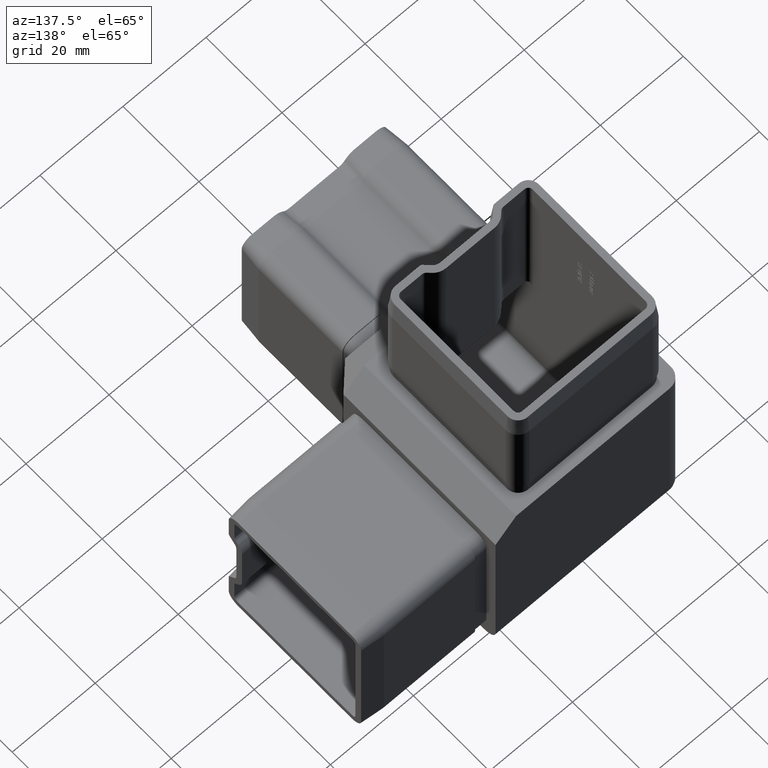
[diagram: clean part render]
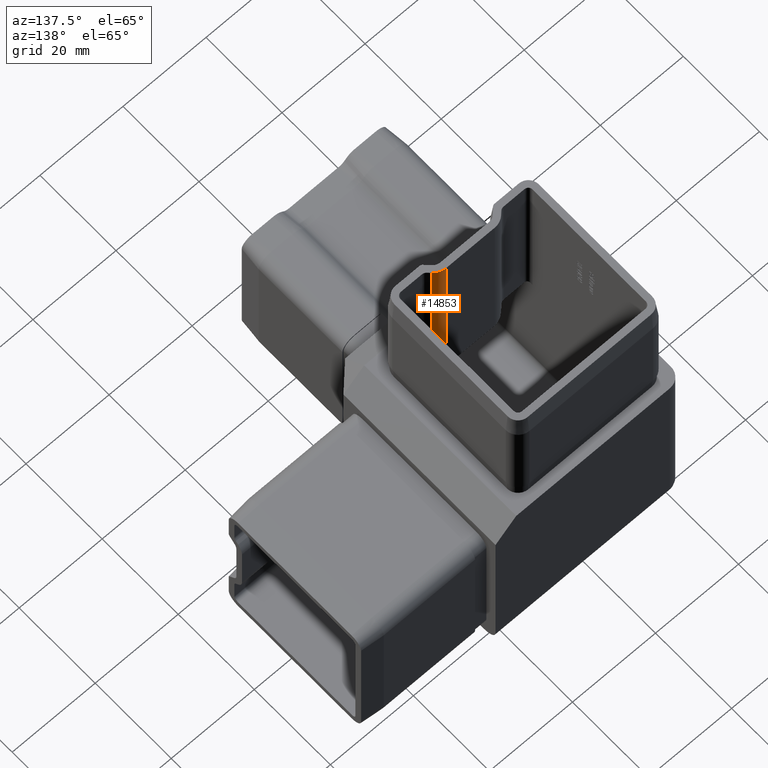
[diagram: same view with one face highlighted and labeled with its STEP entity id]
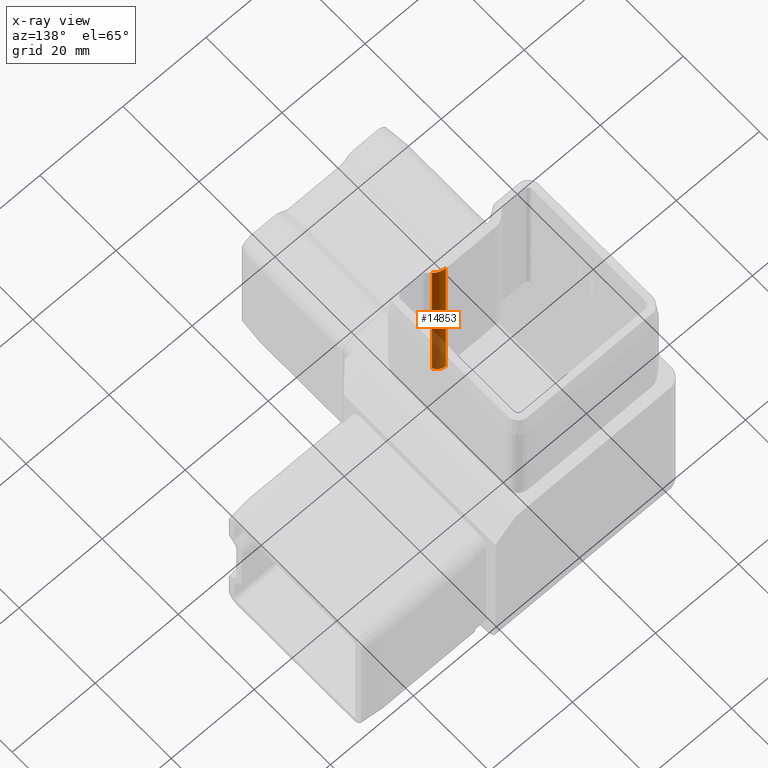
[diagram: x-ray of the same camera — body ghosted, the highlighted face saturated]
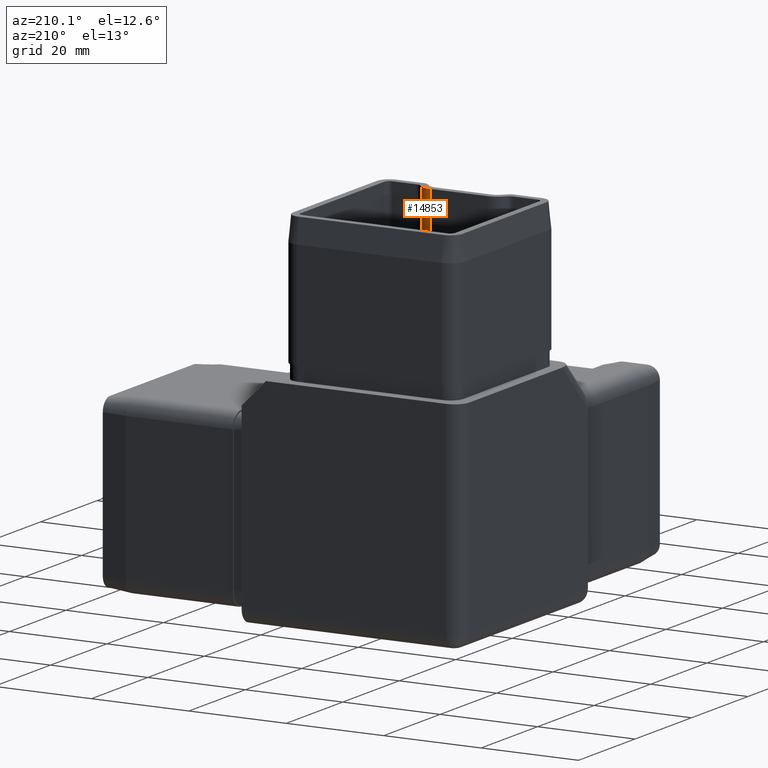
[diagram: same view with one face highlighted and labeled with its STEP entity id]
A machine part, auxiliary view. The second image highlights one B-rep face of the part: STEP entity #14853.
The next image is the same camera in x-ray: the body ghosted, the highlighted face saturated — about 32% of this face is hidden behind the body in this view.
A second angle (auxiliary view) of the same face is appended — the face is thin or edge-on in the first view.
In plain terms, the highlighted cylindrical surface (edge-blend (fillet) strip) has radius 3.5 mm, axis along (-0, -0, -1).
Its self-contained STEP definition (entity closure, byte-faithful):
#1779 = VERTEX_POINT ( 'NONE', #6668 ) ;
#2434 = VECTOR ( 'NONE', #5257, 1000.000000000000000 ) ;
#2592 = DIRECTION ( 'NONE',  ( 1.000000000000000000, 0.0000000000000000000, 0.0000000000000000000 ) ) ;
#3000 = CYLINDRICAL_SURFACE ( 'NONE', #14051, 3.500000000000000400 ) ;
#3264 = EDGE_LOOP ( 'NONE', ( #12766, #4208, #13598, #6419 ) ) ;
#4181 = EDGE_CURVE ( 'NONE', #11498, #16395, #10893, .T. ) ;
#4208 = ORIENTED_EDGE ( 'NONE', *, *, #4181, .F. ) ;
#5214 = DIRECTION ( 'NONE',  ( -0.0000000000000000000, -0.0000000000000000000, -1.000000000000000000 ) ) ;
#5257 = DIRECTION ( 'NONE',  ( -0.0000000000000000000, -0.0000000000000000000, -1.000000000000000000 ) ) ;
#5471 = CARTESIAN_POINT ( 'NONE',  ( 3.378679656440366100, -11.40000000000000400, 52.50000000000000000 ) ) ;
#5583 = CIRCLE ( 'NONE', #16448, 3.500000000000000400 ) ;
#6419 = ORIENTED_EDGE ( 'NONE', *, *, #11043, .T. ) ;
#6507 = DIRECTION ( 'NONE',  ( -0.0000000000000000000, -0.0000000000000000000, -1.000000000000000000 ) ) ;
#6668 = CARTESIAN_POINT ( 'NONE',  ( 5.853553390593282800, -12.42512626584708700, 52.50000000000000000 ) ) ;
#6698 = VERTEX_POINT ( 'NONE', #5471 ) ;
#7474 = CARTESIAN_POINT ( 'NONE',  ( 5.188403598331389000, -11.75997647358519200, 11.75997647358519600 ) ) ;
#8065 = CARTESIAN_POINT ( 'NONE',  ( 3.378679656440366500, -14.90000000000000400, 52.50000000000000000 ) ) ;
#8787 = CARTESIAN_POINT ( 'NONE',  ( 5.853553390593284600, -12.42512626584708700, 12.42512626584708900 ) ) ;
#9123 = CARTESIAN_POINT ( 'NONE',  ( 3.378679656440366500, -11.40000000000000400, 11.40000000000000700 ) ) ;
#10123 = CARTESIAN_POINT ( 'NONE',  ( 3.378679656440366500, -11.40000000000000400, 11.40000000000000700 ) ) ;
#10361 = CARTESIAN_POINT ( 'NONE',  ( 5.853553390593284600, -12.42512626584708700, 12.42512626584708900 ) ) ;
#10566 = CARTESIAN_POINT ( 'NONE',  ( 5.853553390593282800, -12.42512626584708700, 52.50000000000000000 ) ) ;
#10893 =( BOUNDED_CURVE ( )  B_SPLINE_CURVE ( 3, ( #10123, #15417, #7474, #8787 ),
 .UNSPECIFIED., .F., .T. ) 
 B_SPLINE_CURVE_WITH_KNOTS ( ( 4, 4 ),
 ( 3.141592653589793100, 3.926990816987241800 ),
 .UNSPECIFIED. ) 
 CURVE ( )  GEOMETRIC_REPRESENTATION_ITEM ( )  RATIONAL_B_SPLINE_CURVE ( ( 1.000000000000000000, 0.9492530216741910100, 0.9492530216741910100, 1.000000000000000000 ) ) 
 REPRESENTATION_ITEM ( '' )  );
#11043 = EDGE_CURVE ( 'NONE', #6698, #1779, #5583, .T. ) ;
#11498 = VERTEX_POINT ( 'NONE', #9123 ) ;
#11522 = LINE ( 'NONE', #14488, #14636 ) ;
#11535 = EDGE_CURVE ( 'NONE', #1779, #16395, #17182, .T. ) ;
#11821 = CARTESIAN_POINT ( 'NONE',  ( 3.378679656440366500, -14.90000000000000400, 52.50000000000000000 ) ) ;
#12766 = ORIENTED_EDGE ( 'NONE', *, *, #11535, .T. ) ;
#12783 = FACE_OUTER_BOUND ( 'NONE', #3264, .T. ) ;
#13598 = ORIENTED_EDGE ( 'NONE', *, *, #15760, .F. ) ;
#14051 = AXIS2_PLACEMENT_3D ( 'NONE', #8065, #6507, #15961 ) ;
#14488 = CARTESIAN_POINT ( 'NONE',  ( 3.378679656440366100, -11.40000000000000400, 52.50000000000000000 ) ) ;
#14636 = VECTOR ( 'NONE', #17031, 1000.000000000000000 ) ;
#14853 = ADVANCED_FACE ( 'NONE', ( #12783 ), #3000, .T. ) ;
#15417 = CARTESIAN_POINT ( 'NONE',  ( 4.319343513666783700, -11.40000000000000000, 11.40000000000000000 ) ) ;
#15760 = EDGE_CURVE ( 'NONE', #6698, #11498, #11522, .T. ) ;
#15961 = DIRECTION ( 'NONE',  ( -1.000000000000000000, 0.0000000000000000000, 0.0000000000000000000 ) ) ;
#16395 = VERTEX_POINT ( 'NONE', #10361 ) ;
#16448 = AXIS2_PLACEMENT_3D ( 'NONE', #11821, #5214, #2592 ) ;
#17031 = DIRECTION ( 'NONE',  ( -0.0000000000000000000, -0.0000000000000000000, -1.000000000000000000 ) ) ;
#17182 = LINE ( 'NONE', #10566, #2434 ) ;